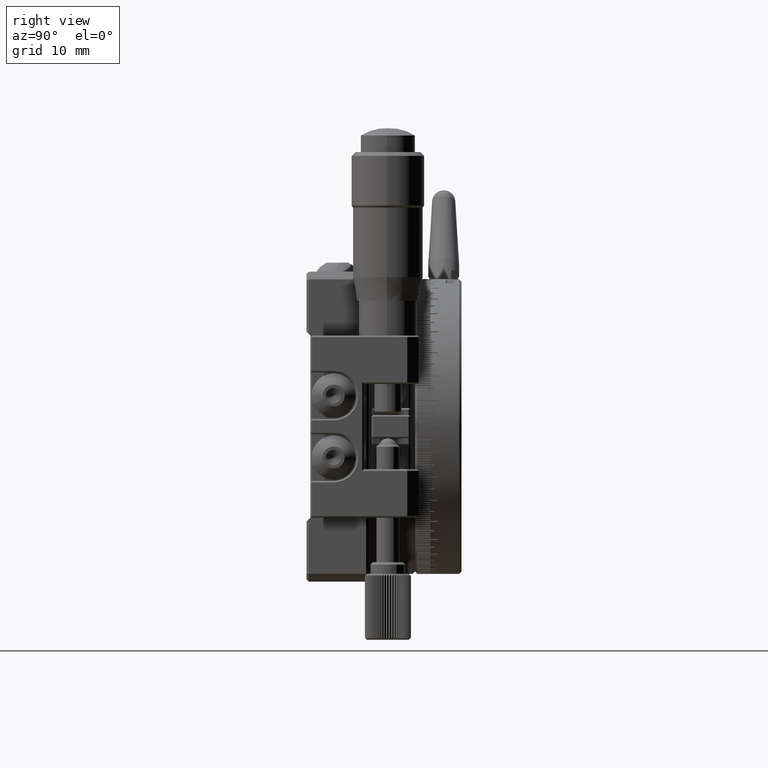
[diagram: clean part render]
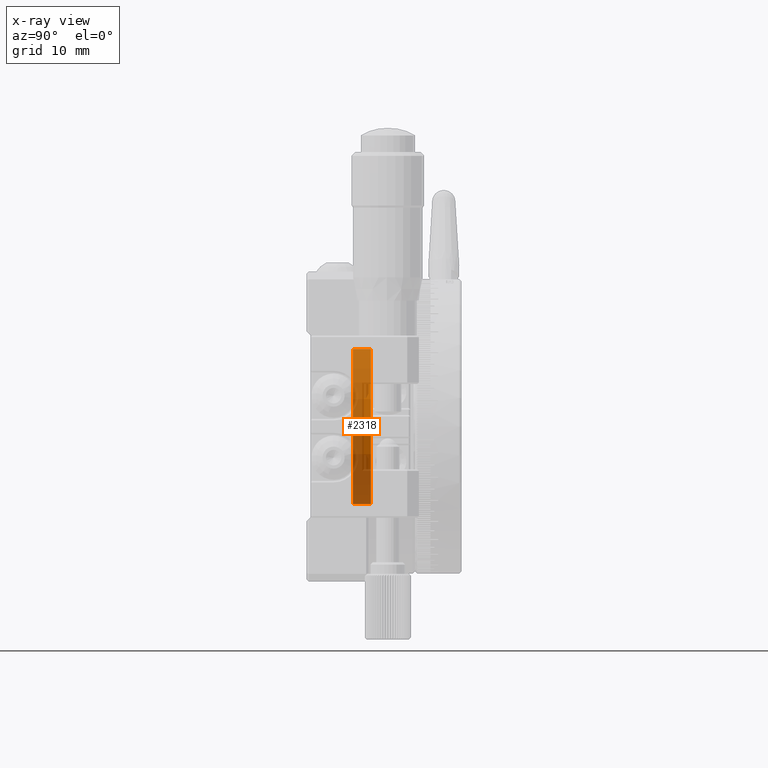
[diagram: x-ray — body ghosted, one internal face saturated and labeled with its STEP entity id]
A machine part, right view, then the same camera in x-ray: the body is ghosted and one INTERNAL B-rep face — a face not visible from any outside direction — is saturated and labeled: STEP entity #2318.
In plain terms, the highlighted cylindrical surface (partial cylindrical patch) has radius 10 mm, axis along (0, 1, 0).
Its self-contained STEP definition (entity closure, byte-faithful):
#310 = AXIS2_PLACEMENT_3D ( 'NONE', #47125, #35217, #10986 ) ;
#2318 = ADVANCED_FACE ( 'NONE', ( #48892 ), #22622, .T. ) ;
#4175 = CARTESIAN_POINT ( 'NONE',  ( -5.419930948978049356E-16, 34.88673092921905550, 7.171914733750769489E-16 ) ) ;
#7673 = EDGE_CURVE ( 'NONE', #67676, #20463, #21235, .T. ) ;
#10986 = DIRECTION ( 'NONE',  ( 0.000000000000000000, 0.000000000000000000, -1.000000000000000000 ) ) ;
#15953 = EDGE_LOOP ( 'NONE', ( #31644, #47445, #25358, #16723 ) ) ;
#16723 = ORIENTED_EDGE ( 'NONE', *, *, #7673, .F. ) ;
#18683 = CIRCLE ( 'NONE', #310, 10.00000000000000000 ) ;
#20463 = VERTEX_POINT ( 'NONE', #31336 ) ;
#21235 = LINE ( 'NONE', #65183, #39477 ) ;
#21657 = CARTESIAN_POINT ( 'NONE',  ( 6.826537042495481236E-16, 8.300000000000000711, -9.999999999999998224 ) ) ;
#22622 = CYLINDRICAL_SURFACE ( 'NONE', #80942, 10.00000000000000000 ) ;
#25358 = ORIENTED_EDGE ( 'NONE', *, *, #26381, .T. ) ;
#25905 = CARTESIAN_POINT ( 'NONE',  ( 6.826537042495482222E-16, 34.88673092921905550, -10.00000000000000000 ) ) ;
#26381 = EDGE_CURVE ( 'NONE', #50511, #20463, #54015, .T. ) ;
#27205 = EDGE_CURVE ( 'NONE', #51582, #67676, #18683, .T. ) ;
#28780 = DIRECTION ( 'NONE',  ( 0.000000000000000000, 0.000000000000000000, 1.000000000000000000 ) ) ;
#31336 = CARTESIAN_POINT ( 'NONE',  ( -5.419930948978058231E-16, 8.300000000000000711, 10.00000000000000178 ) ) ;
#31644 = ORIENTED_EDGE ( 'NONE', *, *, #27205, .F. ) ;
#35217 = DIRECTION ( 'NONE',  ( 0.000000000000000000, -1.000000000000000000, 0.000000000000000000 ) ) ;
#36580 = DIRECTION ( 'NONE',  ( 0.000000000000000000, 1.000000000000000000, 0.000000000000000000 ) ) ;
#38246 = AXIS2_PLACEMENT_3D ( 'NONE', #48729, #42992, #55700 ) ;
#39477 = VECTOR ( 'NONE', #40132, 1000.000000000000000 ) ;
#40132 = DIRECTION ( 'NONE',  ( 0.000000000000000000, 1.000000000000000000, 0.000000000000000000 ) ) ;
#41758 = VECTOR ( 'NONE', #51355, 1000.000000000000000 ) ;
#42992 = DIRECTION ( 'NONE',  ( 0.000000000000000000, -1.000000000000000000, 0.000000000000000000 ) ) ;
#47125 = CARTESIAN_POINT ( 'NONE',  ( -5.419930948978049356E-16, 6.000000000000000000, 7.171914733750769489E-16 ) ) ;
#47445 = ORIENTED_EDGE ( 'NONE', *, *, #64308, .T. ) ;
#48729 = CARTESIAN_POINT ( 'NONE',  ( 2.876366937409134659E-15, 8.300000000000000711, 1.100900866175971955E-15 ) ) ;
#48892 = FACE_OUTER_BOUND ( 'NONE', #15953, .T. ) ;
#50511 = VERTEX_POINT ( 'NONE', #21657 ) ;
#51355 = DIRECTION ( 'NONE',  ( 0.000000000000000000, 1.000000000000000000, 0.000000000000000000 ) ) ;
#51582 = VERTEX_POINT ( 'NONE', #63071 ) ;
#54015 = CIRCLE ( 'NONE', #38246, 10.00000000000000000 ) ;
#55150 = CARTESIAN_POINT ( 'NONE',  ( -5.419930948978049356E-16, 6.000000000000000000, 10.00000000000000000 ) ) ;
#55700 = DIRECTION ( 'NONE',  ( 0.000000000000000000, 0.000000000000000000, -1.000000000000000000 ) ) ;
#63071 = CARTESIAN_POINT ( 'NONE',  ( 6.826537042495482222E-16, 6.000000000000000000, -10.00000000000000000 ) ) ;
#64308 = EDGE_CURVE ( 'NONE', #51582, #50511, #68257, .T. ) ;
#65183 = CARTESIAN_POINT ( 'NONE',  ( -5.419930948978049356E-16, 34.88673092921905550, 10.00000000000000000 ) ) ;
#67676 = VERTEX_POINT ( 'NONE', #55150 ) ;
#68257 = LINE ( 'NONE', #25905, #41758 ) ;
#80942 = AXIS2_PLACEMENT_3D ( 'NONE', #4175, #36580, #28780 ) ;